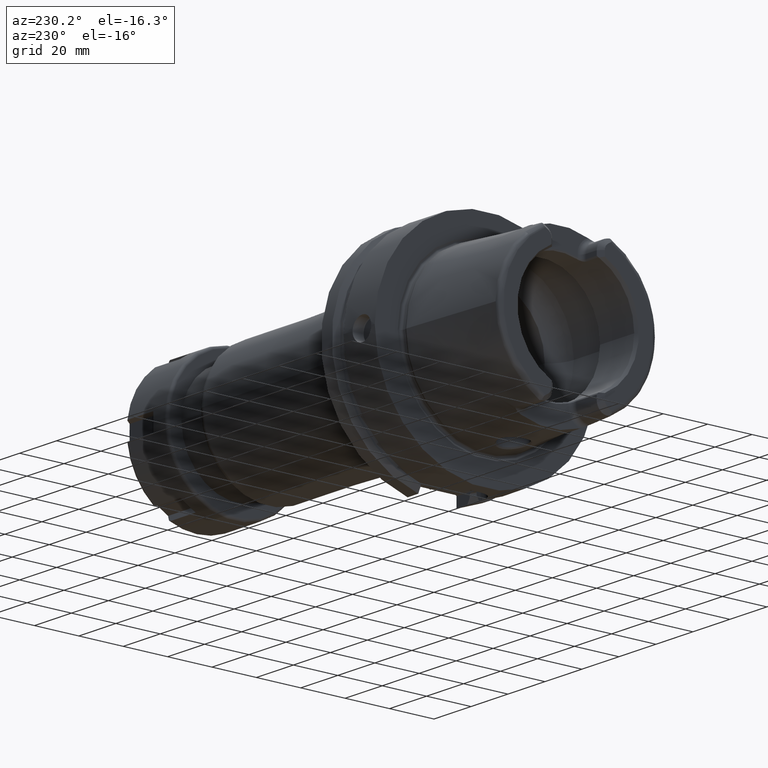
[diagram: clean part render]
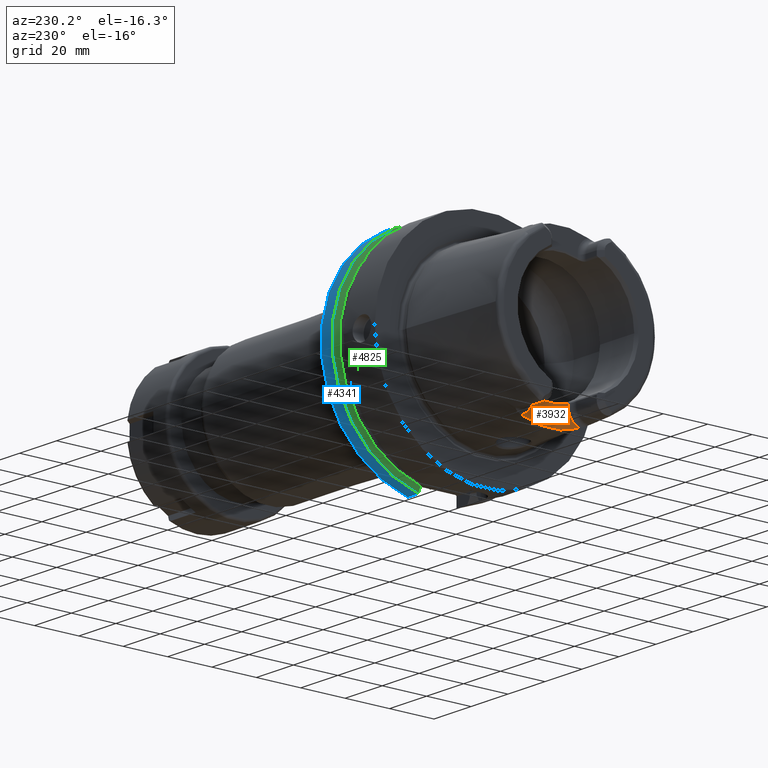
[diagram: same view with three faces highlighted in distinct colors, each labeled with its STEP entity id]
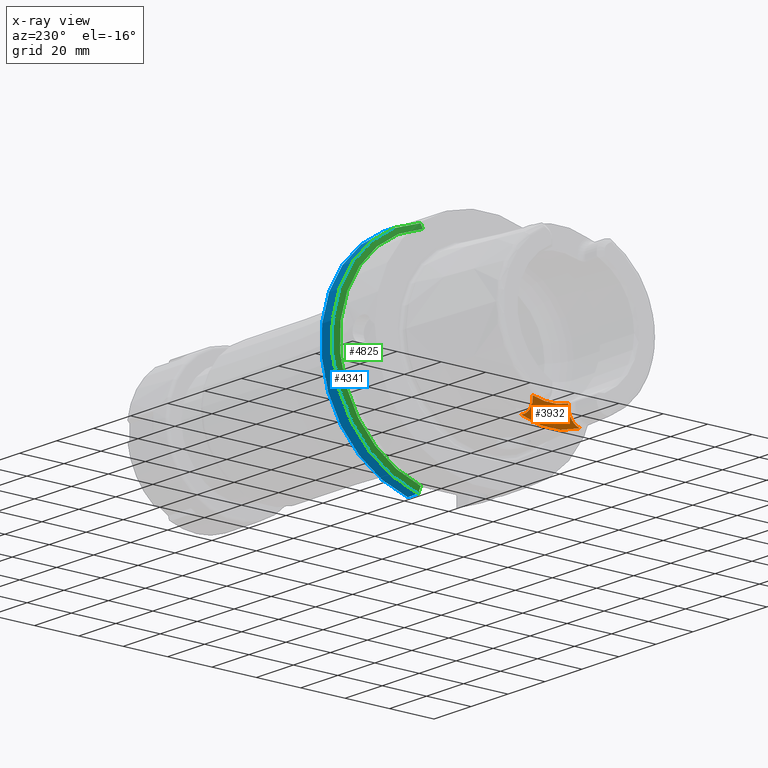
[diagram: x-ray of the same camera — body ghosted, the three highlighted faces saturated]
A machine part, auxiliary view with three faces highlighted in distinct colors.
The next image is the same camera in x-ray (body ghosted, the three faces saturated) — at least one of them is partly hidden behind the body in this view.
Their STEP definitions:

[orange] entity #3932 — the highlighted planar face has unit normal (-1, 0, 0).
#549=CARTESIAN_POINT('',(-3.5E1,0.E0,0.E0));
#550=DIRECTION('',(1.E0,0.E0,0.E0));
#551=DIRECTION('',(0.E0,-3.659355944317E-1,-9.306401779033E-1));
#552=AXIS2_PLACEMENT_3D('',#549,#550,#551);
#659=CARTESIAN_POINT('',(-3.5E1,1.326662904053E1,-3.373942900971E1));
#700=CARTESIAN_POINT('',(-3.5E1,-8.009999999994E0,-2.576044140549E1));
#701=CARTESIAN_POINT('',(-3.5E1,-7.269616392494E0,-2.599521452766E1));
#702=CARTESIAN_POINT('',(-3.5E1,-5.774680607735E0,-2.639793295020E1));
#703=CARTESIAN_POINT('',(-3.5E1,-3.481759859027E0,-2.680464578135E1));
#704=CARTESIAN_POINT('',(-3.5E1,-1.163574268408E0,-2.700848033442E1));
#705=CARTESIAN_POINT('',(-3.5E1,1.163574229636E0,-2.700848033529E1));
#706=CARTESIAN_POINT('',(-3.5E1,3.481759771636E0,-2.680464579107E1));
#707=CARTESIAN_POINT('',(-3.5E1,5.774680487919E0,-2.639793297771E1));
#708=CARTESIAN_POINT('',(-3.5E1,7.269616343063E0,-2.599521454333E1));
#709=CARTESIAN_POINT('',(-3.5E1,8.009999999993E0,-2.576044140549E1));
#711=DIRECTION('',(0.E0,-5.262912738182E-12,-1.E0));
#712=VECTOR('',#711,1.199558594507E0);
#713=CARTESIAN_POINT('',(-3.5E1,-8.009999999994E0,-2.576044140549E1));
#714=LINE('',#713,#712);
#715=CARTESIAN_POINT('',(-3.5E1,-1.501E1,-2.696E1));
#716=DIRECTION('',(-1.E0,0.E0,0.E0));
#717=DIRECTION('',(0.E0,1.E0,0.E0));
#718=AXIS2_PLACEMENT_3D('',#715,#716,#717);
#720=CARTESIAN_POINT('',(-3.5E1,1.501E1,-2.696E1));
#721=DIRECTION('',(-1.E0,0.E0,0.E0));
#722=DIRECTION('',(0.E0,-2.490529942106E-1,-9.684898585296E-1));
#723=AXIS2_PLACEMENT_3D('',#720,#721,#722);
#725=DIRECTION('',(0.E0,-6.865183864462E-12,1.E0));
#726=VECTOR('',#725,1.199558594503E0);
#727=CARTESIAN_POINT('',(-3.5E1,8.010000000001E0,-2.695999999999E1));
#728=LINE('',#727,#726);
#799=CARTESIAN_POINT('',(-3.5E1,-1.326662904053E1,-3.373942900971E1));
#2931=VERTEX_POINT('',#799);
#2932=VERTEX_POINT('',#659);
#2936=CARTESIAN_POINT('',(-3.5E1,-8.01E0,-2.696E1));
#2938=VERTEX_POINT('',#2936);
#2940=CARTESIAN_POINT('',(-3.5E1,8.01E0,-2.696E1));
#2942=VERTEX_POINT('',#2940);
#2948=VERTEX_POINT('',#700);
#2949=VERTEX_POINT('',#709);
#3917=CARTESIAN_POINT('',(-3.5E1,0.E0,0.E0));
#3918=DIRECTION('',(-1.E0,0.E0,0.E0));
#3919=DIRECTION('',(0.E0,0.E0,1.E0));
#3920=AXIS2_PLACEMENT_3D('',#3917,#3918,#3919);
#3921=PLANE('',#3920);
#3922=ORIENTED_EDGE('',*,*,#3908,.F.);
#3924=ORIENTED_EDGE('',*,*,#3923,.T.);
#3926=ORIENTED_EDGE('',*,*,#3925,.T.);
#3927=ORIENTED_EDGE('',*,*,#3756,.T.);
#3928=ORIENTED_EDGE('',*,*,#3814,.T.);
#3929=ORIENTED_EDGE('',*,*,#3826,.T.);
#3930=EDGE_LOOP('',(#3922,#3924,#3926,#3927,#3928,#3929));
#3931=FACE_OUTER_BOUND('',#3930,.F.);
#3932=ADVANCED_FACE('',(#3931),#3921,.T.);
#553=CIRCLE('',#552,3.6254E1);
#710=B_SPLINE_CURVE_WITH_KNOTS('',3,(#700,#701,#702,#703,#704,#705,#706,#707,
#708,#709),.UNSPECIFIED.,.F.,.F.,(4,1,1,1,1,1,1,4),(0.E0,1.428571428571E-1,
2.857142857143E-1,4.285714285714E-1,5.714285714286E-1,7.142857142857E-1,
8.571428571429E-1,1.E0),.UNSPECIFIED.);
#719=CIRCLE('',#718,7.E0);
#724=CIRCLE('',#723,7.E0);
#3756=EDGE_CURVE('',#2931,#2932,#553,.T.);
#3814=EDGE_CURVE('',#2932,#2942,#724,.T.);
#3826=EDGE_CURVE('',#2942,#2949,#728,.T.);
#3908=EDGE_CURVE('',#2948,#2949,#710,.T.);
#3923=EDGE_CURVE('',#2948,#2938,#714,.T.);
#3925=EDGE_CURVE('',#2938,#2931,#719,.T.);

[blue] entity #4341 — the highlighted cylindrical surface (partial cylindrical patch) has radius 50 mm, axis along (1, 0, 0).
#1065=CARTESIAN_POINT('',(2.9E1,0.E0,0.E0));
#1066=DIRECTION('',(1.E0,0.E0,0.E0));
#1067=DIRECTION('',(0.E0,2.2042E-1,-9.754050561690E-1));
#1068=AXIS2_PLACEMENT_3D('',#1065,#1066,#1067);
#1186=DIRECTION('',(-1.E0,0.E0,0.E0));
#1187=VECTOR('',#1186,5.752404735808E0);
#1188=CARTESIAN_POINT('',(2.9E1,1.1021E1,-4.877025280845E1));
#1189=LINE('',#1188,#1187);
#1627=CARTESIAN_POINT('',(2.324759526419E1,1.1021E1,-4.877025280845E1));
#1634=CARTESIAN_POINT('',(2.324759526419E1,0.E0,0.E0));
#1635=DIRECTION('',(1.E0,0.E0,0.E0));
#1636=DIRECTION('',(0.E0,2.2042E-1,-9.754050561690E-1));
#1637=AXIS2_PLACEMENT_3D('',#1634,#1635,#1636);
#1644=CARTESIAN_POINT('',(2.324759526419E1,1.0021E1,4.898550355973E1));
#1703=DIRECTION('',(1.E0,0.E0,0.E0));
#1704=VECTOR('',#1703,5.752404735808E0);
#1705=CARTESIAN_POINT('',(2.324759526419E1,1.0021E1,4.898550355973E1));
#1706=LINE('',#1705,#1704);
#3075=VERTEX_POINT('',#1644);
#3112=VERTEX_POINT('',#1627);
#3134=CARTESIAN_POINT('',(2.9E1,1.1021E1,-4.877025280845E1));
#3135=CARTESIAN_POINT('',(2.9E1,1.0021E1,4.898550355973E1));
#3136=VERTEX_POINT('',#3134);
#3137=VERTEX_POINT('',#3135);
#4326=CARTESIAN_POINT('',(-5.395E1,0.E0,0.E0));
#4327=DIRECTION('',(1.E0,0.E0,0.E0));
#4328=DIRECTION('',(0.E0,-1.E0,0.E0));
#4329=AXIS2_PLACEMENT_3D('',#4326,#4327,#4328);
#4330=CYLINDRICAL_SURFACE('',#4329,5.E1);
#4332=ORIENTED_EDGE('',*,*,#4331,.F.);
#4334=ORIENTED_EDGE('',*,*,#4333,.T.);
#4336=ORIENTED_EDGE('',*,*,#4335,.F.);
#4338=ORIENTED_EDGE('',*,*,#4337,.F.);
#4339=EDGE_LOOP('',(#4332,#4334,#4336,#4338));
#4340=FACE_OUTER_BOUND('',#4339,.F.);
#4341=ADVANCED_FACE('',(#4340),#4330,.T.);
#1069=CIRCLE('',#1068,5.E1);
#1638=CIRCLE('',#1637,5.E1);
#4331=EDGE_CURVE('',#3136,#3112,#1189,.T.);
#4333=EDGE_CURVE('',#3136,#3137,#1069,.T.);
#4335=EDGE_CURVE('',#3075,#3137,#1706,.T.);
#4337=EDGE_CURVE('',#3112,#3075,#1638,.T.);

[green] entity #4825 — the highlighted conical surface has half-angle 60 deg.
#1627=CARTESIAN_POINT('',(2.324759526419E1,1.1021E1,-4.877025280845E1));
#1628=CARTESIAN_POINT('',(2.309075135062E1,1.1021E1,-4.849174120402E1));
#1629=CARTESIAN_POINT('',(2.277995385442E1,1.1021E1,-4.793961855272E1));
#1630=CARTESIAN_POINT('',(2.232250445742E1,1.1021E1,-4.712627442741E1));
#1631=CARTESIAN_POINT('',(2.202321382636E1,1.1021E1,-4.659366407718E1));
#1632=CARTESIAN_POINT('',(2.1875E1,1.1021E1,-4.632978673270E1));
#1634=CARTESIAN_POINT('',(2.324759526419E1,0.E0,0.E0));
#1635=DIRECTION('',(1.E0,0.E0,0.E0));
#1636=DIRECTION('',(0.E0,2.2042E-1,-9.754050561690E-1));
#1637=AXIS2_PLACEMENT_3D('',#1634,#1635,#1636);
#1639=CARTESIAN_POINT('',(2.1875E1,1.0021E1,4.655632222048E1));
#1640=CARTESIAN_POINT('',(2.202341002451E1,1.0021E1,4.681926318888E1));
#1641=CARTESIAN_POINT('',(2.232296264525E1,1.0021E1,4.734978916905E1));
#1642=CARTESIAN_POINT('',(2.278042159889E1,1.0021E1,4.815938834524E1));
#1643=CARTESIAN_POINT('',(2.309095197037E1,1.0021E1,4.870857046335E1));
#1644=CARTESIAN_POINT('',(2.324759526419E1,1.0021E1,4.898550355973E1));
#1646=CARTESIAN_POINT('',(2.1875E1,0.E0,0.E0));
#1647=DIRECTION('',(-1.E0,0.E0,0.E0));
#1648=DIRECTION('',(0.E0,2.104253231981E-1,9.776099341542E-1));
#1649=AXIS2_PLACEMENT_3D('',#1646,#1647,#1648);
#3072=CARTESIAN_POINT('',(2.1875E1,1.0021E1,4.655632222048E1));
#3073=VERTEX_POINT('',#3072);
#3075=VERTEX_POINT('',#1644);
#3108=CARTESIAN_POINT('',(2.1875E1,1.1021E1,-4.632978673270E1));
#3109=VERTEX_POINT('',#3108);
#3112=VERTEX_POINT('',#1627);
#4813=CARTESIAN_POINT('',(2.256129763210E1,0.E0,0.E0));
#4814=DIRECTION('',(1.E0,0.E0,0.E0));
#4815=DIRECTION('',(0.E0,-1.E0,0.E0));
#4816=AXIS2_PLACEMENT_3D('',#4813,#4814,#4815);
#4817=CONICAL_SURFACE('',#4816,4.881129763210E1,6.E1);
#4818=ORIENTED_EDGE('',*,*,#4403,.F.);
#4819=ORIENTED_EDGE('',*,*,#4337,.T.);
#4821=ORIENTED_EDGE('',*,*,#4820,.F.);
#4822=ORIENTED_EDGE('',*,*,#4776,.T.);
#4823=EDGE_LOOP('',(#4818,#4819,#4821,#4822));
#4824=FACE_OUTER_BOUND('',#4823,.F.);
#4825=ADVANCED_FACE('',(#4824),#4817,.T.);
#1633=B_SPLINE_CURVE_WITH_KNOTS('',3,(#1627,#1628,#1629,#1630,#1631,#1632),
.UNSPECIFIED.,.F.,.F.,(4,1,1,4),(0.E0,3.333333333333E-1,6.666666666667E-1,1.E0),
.UNSPECIFIED.);
#1638=CIRCLE('',#1637,5.E1);
#1645=B_SPLINE_CURVE_WITH_KNOTS('',3,(#1639,#1640,#1641,#1642,#1643,#1644),
.UNSPECIFIED.,.F.,.F.,(4,1,1,4),(0.E0,3.333333333333E-1,6.666666666667E-1,1.E0),
.UNSPECIFIED.);
#1650=CIRCLE('',#1649,4.762259526419E1);
#4337=EDGE_CURVE('',#3112,#3075,#1638,.T.);
#4403=EDGE_CURVE('',#3112,#3109,#1633,.T.);
#4776=EDGE_CURVE('',#3073,#3109,#1650,.T.);
#4820=EDGE_CURVE('',#3073,#3075,#1645,.T.);